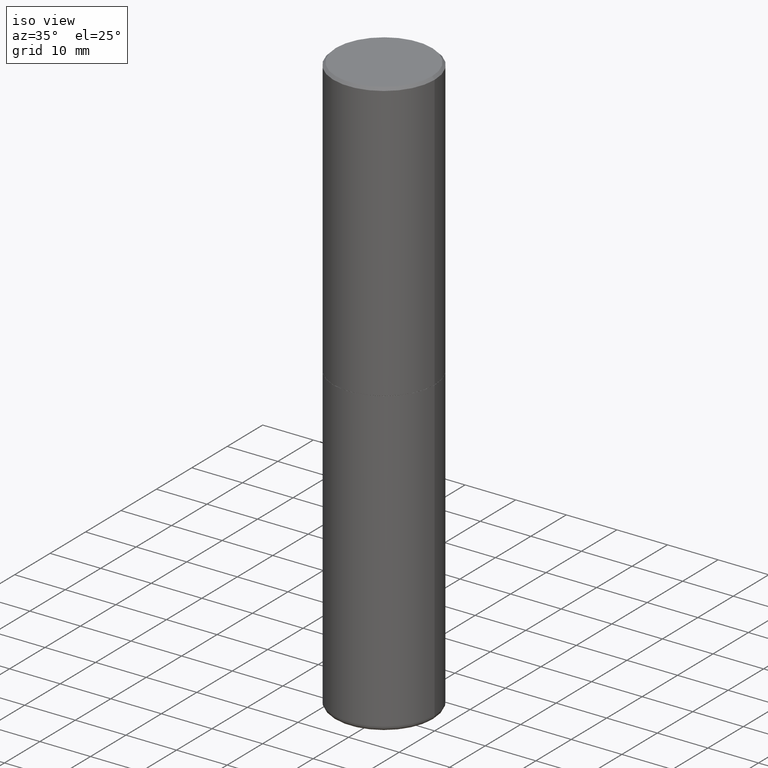
[diagram: clean part render]
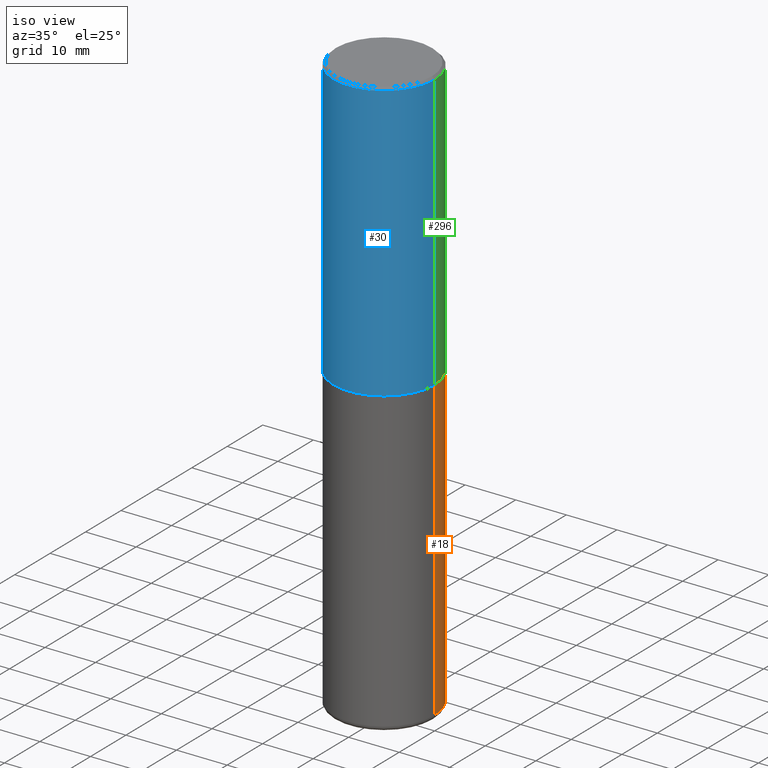
[diagram: same view with three faces highlighted in distinct colors, each labeled with its STEP entity id]
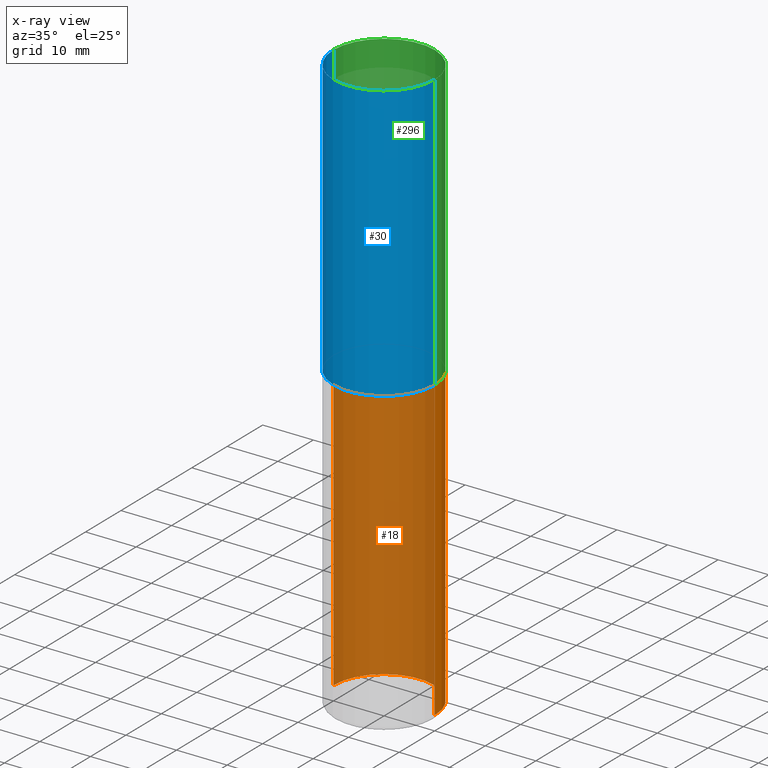
[diagram: x-ray of the same camera — body ghosted, the three highlighted faces saturated]
A machine part, iso view with three faces highlighted in distinct colors.
The next image is the same camera in x-ray (body ghosted, the three faces saturated) — at least one of them is partly hidden behind the body in this view.
Their STEP definitions:

[orange] entity #18 — the highlighted cylindrical surface (partial cylindrical patch) has radius 10 mm, axis along (-0, 0, 1).
#18 = ADVANCED_FACE ( 'NONE', ( #325 ), #94, .T. ) ;
#21 = ORIENTED_EDGE ( 'NONE', *, *, #251, .F. ) ;
#32 = CARTESIAN_POINT ( 'NONE',  ( 0.000000000000000000, 0.000000000000000000, 0.000000000000000000 ) ) ;
#38 = CARTESIAN_POINT ( 'NONE',  ( 0.3937000000000002164, -1.841965895120088790E-14, -4.488199999999999079 ) ) ;
#51 = ORIENTED_EDGE ( 'NONE', *, *, #62, .F. ) ;
#62 = EDGE_CURVE ( 'NONE', #223, #409, #64, .T. ) ;
#64 = LINE ( 'NONE', #200, #358 ) ;
#91 = DIRECTION ( 'NONE',  ( -2.445468806185136597E-29, 3.491481338843145583E-15, 1.000000000000000000 ) ) ;
#94 = CYLINDRICAL_SURFACE ( 'NONE', #206, 0.3937000000000000499 ) ;
#104 = CARTESIAN_POINT ( 'NONE',  ( 1.097575309592012950E-28, -1.567046654499580152E-14, -4.488199999999999079 ) ) ;
#110 = VERTEX_POINT ( 'NONE', #213 ) ;
#121 = AXIS2_PLACEMENT_3D ( 'NONE', #104, #265, #338 ) ;
#145 = EDGE_CURVE ( 'NONE', #110, #155, #171, .T. ) ;
#154 = ORIENTED_EDGE ( 'NONE', *, *, #145, .T. ) ;
#155 = VERTEX_POINT ( 'NONE', #275 ) ;
#160 = CIRCLE ( 'NONE', #219, 0.3937000000000000499 ) ;
#171 = LINE ( 'NONE', #204, #411 ) ;
#180 = DIRECTION ( 'NONE',  ( 1.000000000000000000, -6.982962677686265133E-15, 0.000000000000000000 ) ) ;
#195 = CIRCLE ( 'NONE', #121, 0.3937000000000000499 ) ;
#200 = CARTESIAN_POINT ( 'NONE',  ( 0.3937000000000000499, -2.749192406205083217E-15, 1.919750796630860172E-29 ) ) ;
#204 = CARTESIAN_POINT ( 'NONE',  ( -0.3937000000000000499, 2.797406750687514786E-15, -1.936584745033356735E-29 ) ) ;
#206 = AXIS2_PLACEMENT_3D ( 'NONE', #32, #91, #329 ) ;
#209 = CARTESIAN_POINT ( 'NONE',  ( 0.3937000000000000499, -1.030964609733602906E-14, -2.165399999999999547 ) ) ;
#213 = CARTESIAN_POINT ( 'NONE',  ( -0.3937000000000002164, -1.287305979430828753E-14, -4.488199999999999079 ) ) ;
#219 = AXIS2_PLACEMENT_3D ( 'NONE', #236, #272, #180 ) ;
#223 = VERTEX_POINT ( 'NONE', #38 ) ;
#229 = EDGE_CURVE ( 'NONE', #223, #110, #195, .T. ) ;
#236 = CARTESIAN_POINT ( 'NONE',  ( 5.295418152913293224E-29, -7.560453691130945845E-15, -2.165399999999999547 ) ) ;
#251 = EDGE_CURVE ( 'NONE', #409, #155, #160, .T. ) ;
#264 = DIRECTION ( 'NONE',  ( -2.445468806185136877E-29, 3.491481338843145188E-15, 1.000000000000000000 ) ) ;
#265 = DIRECTION ( 'NONE',  ( -2.445468806185136597E-29, 3.491481338843145583E-15, 1.000000000000000000 ) ) ;
#272 = DIRECTION ( 'NONE',  ( -2.445468806185136597E-29, 3.491481338843145583E-15, 1.000000000000000000 ) ) ;
#275 = CARTESIAN_POINT ( 'NONE',  ( -0.3937000000000000499, -8.818053367375859687E-15, -2.165399999999999547 ) ) ;
#277 = DIRECTION ( 'NONE',  ( -2.445468806185136877E-29, 3.491481338843145188E-15, 1.000000000000000000 ) ) ;
#316 = EDGE_LOOP ( 'NONE', ( #349, #154, #21, #51 ) ) ;
#325 = FACE_OUTER_BOUND ( 'NONE', #316, .T. ) ;
#329 = DIRECTION ( 'NONE',  ( 1.000000000000000000, -6.982962677686265922E-15, 4.876176775795935793E-29 ) ) ;
#338 = DIRECTION ( 'NONE',  ( 1.000000000000000000, -6.982962677686262766E-15, 0.000000000000000000 ) ) ;
#349 = ORIENTED_EDGE ( 'NONE', *, *, #229, .T. ) ;
#358 = VECTOR ( 'NONE', #264, 39.37007874015748143 ) ;
#409 = VERTEX_POINT ( 'NONE', #209 ) ;
#411 = VECTOR ( 'NONE', #277, 39.37007874015748143 ) ;

[blue] entity #30 — the highlighted cylindrical surface (partial cylindrical patch) has radius 10 mm, axis along (-0, 0, 1).
#4 = ORIENTED_EDGE ( 'NONE', *, *, #23, .F. ) ;
#22 = EDGE_CURVE ( 'NONE', #84, #181, #247, .T. ) ;
#23 = EDGE_CURVE ( 'NONE', #42, #84, #227, .T. ) ;
#28 = FACE_OUTER_BOUND ( 'NONE', #266, .T. ) ;
#30 = ADVANCED_FACE ( 'NONE', ( #28 ), #166, .T. ) ;
#42 = VERTEX_POINT ( 'NONE', #199 ) ;
#63 = CARTESIAN_POINT ( 'NONE',  ( -0.3937000000000001609, 2.797406750687515575E-15, -1.936584745033357296E-29 ) ) ;
#72 = CARTESIAN_POINT ( 'NONE',  ( 0.3937000000000000499, -2.770807688499515734E-15, -0.02000000000000008715 ) ) ;
#81 = AXIS2_PLACEMENT_3D ( 'NONE', #361, #387, #134 ) ;
#84 = VERTEX_POINT ( 'NONE', #230 ) ;
#86 = CARTESIAN_POINT ( 'NONE',  ( 5.292972684107107621E-29, -7.556962209792102838E-15, -2.164399999999999658 ) ) ;
#101 = ORIENTED_EDGE ( 'NONE', *, *, #22, .F. ) ;
#108 = AXIS2_PLACEMENT_3D ( 'NONE', #86, #312, #347 ) ;
#129 = DIRECTION ( 'NONE',  ( 1.000000000000000000, -6.982962677686265922E-15, 0.000000000000000000 ) ) ;
#134 = DIRECTION ( 'NONE',  ( 1.000000000000000000, -6.982962677686266711E-15, 4.876176775795935793E-29 ) ) ;
#143 = LINE ( 'NONE', #152, #324 ) ;
#152 = CARTESIAN_POINT ( 'NONE',  ( 0.3937000000000001609, -2.749192406205084400E-15, 1.919750796630860732E-29 ) ) ;
#166 = CYLINDRICAL_SURFACE ( 'NONE', #81, 0.3937000000000001609 ) ;
#181 = VERTEX_POINT ( 'NONE', #72 ) ;
#191 = AXIS2_PLACEMENT_3D ( 'NONE', #362, #413, #129 ) ;
#196 = ORIENTED_EDGE ( 'NONE', *, *, #254, .T. ) ;
#199 = CARTESIAN_POINT ( 'NONE',  ( -0.3937000000000003830, -1.015989167596963746E-15, -2.164399999999999658 ) ) ;
#208 = VERTEX_POINT ( 'NONE', #301 ) ;
#227 = LINE ( 'NONE', #63, #391 ) ;
#230 = CARTESIAN_POINT ( 'NONE',  ( -0.3937000000000000499, 2.679362779428219918E-15, -0.02000000000000008715 ) ) ;
#247 = CIRCLE ( 'NONE', #191, 0.3937000000000000499 ) ;
#254 = EDGE_CURVE ( 'NONE', #208, #181, #143, .T. ) ;
#266 = EDGE_LOOP ( 'NONE', ( #4, #366, #196, #101 ) ) ;
#290 = EDGE_CURVE ( 'NONE', #42, #208, #295, .T. ) ;
#295 = CIRCLE ( 'NONE', #108, 0.3937000000000002720 ) ;
#301 = CARTESIAN_POINT ( 'NONE',  ( 0.3937000000000002720, -1.030615461599718763E-14, -2.164399999999999658 ) ) ;
#312 = DIRECTION ( 'NONE',  ( -2.445468806185136597E-29, 3.491481338843145583E-15, 1.000000000000000000 ) ) ;
#315 = DIRECTION ( 'NONE',  ( -2.445468806185136877E-29, 3.491481338843145188E-15, 1.000000000000000000 ) ) ;
#324 = VECTOR ( 'NONE', #315, 39.37007874015748143 ) ;
#327 = DIRECTION ( 'NONE',  ( -2.445468806185136877E-29, 3.491481338843145188E-15, 1.000000000000000000 ) ) ;
#347 = DIRECTION ( 'NONE',  ( 1.000000000000000000, -6.982962677686269077E-15, 0.000000000000000000 ) ) ;
#361 = CARTESIAN_POINT ( 'NONE',  ( 0.000000000000000000, 0.000000000000000000, 0.000000000000000000 ) ) ;
#362 = CARTESIAN_POINT ( 'NONE',  ( 4.890937612370294178E-31, -6.982962677686321191E-17, -0.02000000000000008715 ) ) ;
#366 = ORIENTED_EDGE ( 'NONE', *, *, #290, .T. ) ;
#387 = DIRECTION ( 'NONE',  ( -2.445468806185136597E-29, 3.491481338843145583E-15, 1.000000000000000000 ) ) ;
#391 = VECTOR ( 'NONE', #327, 39.37007874015748143 ) ;
#413 = DIRECTION ( 'NONE',  ( -2.445468806185136597E-29, 3.491481338843145583E-15, 1.000000000000000000 ) ) ;

[green] entity #296 — the highlighted cylindrical surface (partial cylindrical patch) has radius 10 mm, axis along (-0, 0, 1).
#14 = DIRECTION ( 'NONE',  ( 1.000000000000000000, -6.982962677686266711E-15, 4.876176775795935793E-29 ) ) ;
#23 = EDGE_CURVE ( 'NONE', #42, #84, #227, .T. ) ;
#27 = AXIS2_PLACEMENT_3D ( 'NONE', #188, #128, #319 ) ;
#34 = AXIS2_PLACEMENT_3D ( 'NONE', #359, #326, #293 ) ;
#42 = VERTEX_POINT ( 'NONE', #199 ) ;
#63 = CARTESIAN_POINT ( 'NONE',  ( -0.3937000000000001609, 2.797406750687515575E-15, -1.936584745033357296E-29 ) ) ;
#67 = ORIENTED_EDGE ( 'NONE', *, *, #254, .F. ) ;
#72 = CARTESIAN_POINT ( 'NONE',  ( 0.3937000000000000499, -2.770807688499515734E-15, -0.02000000000000008715 ) ) ;
#77 = FACE_OUTER_BOUND ( 'NONE', #186, .T. ) ;
#84 = VERTEX_POINT ( 'NONE', #230 ) ;
#119 = ORIENTED_EDGE ( 'NONE', *, *, #23, .T. ) ;
#128 = DIRECTION ( 'NONE',  ( -2.445468806185136597E-29, 3.491481338843145583E-15, 1.000000000000000000 ) ) ;
#143 = LINE ( 'NONE', #152, #324 ) ;
#152 = CARTESIAN_POINT ( 'NONE',  ( 0.3937000000000001609, -2.749192406205084400E-15, 1.919750796630860732E-29 ) ) ;
#157 = CARTESIAN_POINT ( 'NONE',  ( 0.000000000000000000, 0.000000000000000000, 0.000000000000000000 ) ) ;
#181 = VERTEX_POINT ( 'NONE', #72 ) ;
#186 = EDGE_LOOP ( 'NONE', ( #235, #119, #355, #67 ) ) ;
#188 = CARTESIAN_POINT ( 'NONE',  ( 5.292972684107107621E-29, -7.556962209792102838E-15, -2.164399999999999658 ) ) ;
#199 = CARTESIAN_POINT ( 'NONE',  ( -0.3937000000000003830, -1.015989167596963746E-15, -2.164399999999999658 ) ) ;
#203 = CIRCLE ( 'NONE', #27, 0.3937000000000002720 ) ;
#208 = VERTEX_POINT ( 'NONE', #301 ) ;
#215 = DIRECTION ( 'NONE',  ( -2.445468806185136597E-29, 3.491481338843145583E-15, 1.000000000000000000 ) ) ;
#225 = CYLINDRICAL_SURFACE ( 'NONE', #417, 0.3937000000000001609 ) ;
#227 = LINE ( 'NONE', #63, #391 ) ;
#230 = CARTESIAN_POINT ( 'NONE',  ( -0.3937000000000000499, 2.679362779428219918E-15, -0.02000000000000008715 ) ) ;
#235 = ORIENTED_EDGE ( 'NONE', *, *, #260, .T. ) ;
#254 = EDGE_CURVE ( 'NONE', #208, #181, #143, .T. ) ;
#260 = EDGE_CURVE ( 'NONE', #208, #42, #203, .T. ) ;
#293 = DIRECTION ( 'NONE',  ( 1.000000000000000000, -6.982962677686265922E-15, 0.000000000000000000 ) ) ;
#296 = ADVANCED_FACE ( 'NONE', ( #77 ), #225, .T. ) ;
#301 = CARTESIAN_POINT ( 'NONE',  ( 0.3937000000000002720, -1.030615461599718763E-14, -2.164399999999999658 ) ) ;
#315 = DIRECTION ( 'NONE',  ( -2.445468806185136877E-29, 3.491481338843145188E-15, 1.000000000000000000 ) ) ;
#319 = DIRECTION ( 'NONE',  ( 1.000000000000000000, -6.982962677686269077E-15, 0.000000000000000000 ) ) ;
#324 = VECTOR ( 'NONE', #315, 39.37007874015748143 ) ;
#326 = DIRECTION ( 'NONE',  ( -2.445468806185136597E-29, 3.491481338843145583E-15, 1.000000000000000000 ) ) ;
#327 = DIRECTION ( 'NONE',  ( -2.445468806185136877E-29, 3.491481338843145188E-15, 1.000000000000000000 ) ) ;
#355 = ORIENTED_EDGE ( 'NONE', *, *, #383, .F. ) ;
#359 = CARTESIAN_POINT ( 'NONE',  ( 4.890937612370294178E-31, -6.982962677686321191E-17, -0.02000000000000008715 ) ) ;
#383 = EDGE_CURVE ( 'NONE', #181, #84, #407, .T. ) ;
#391 = VECTOR ( 'NONE', #327, 39.37007874015748143 ) ;
#407 = CIRCLE ( 'NONE', #34, 0.3937000000000000499 ) ;
#417 = AXIS2_PLACEMENT_3D ( 'NONE', #157, #215, #14 ) ;